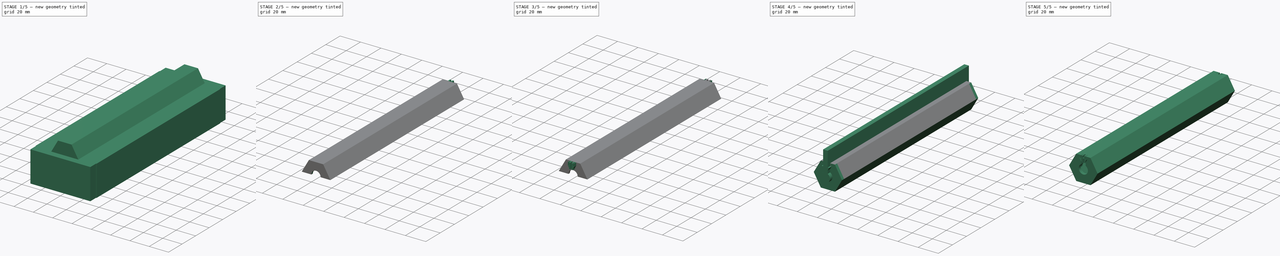
[diagram: build sequence overview — one tinted view per stage of 5, left to right]
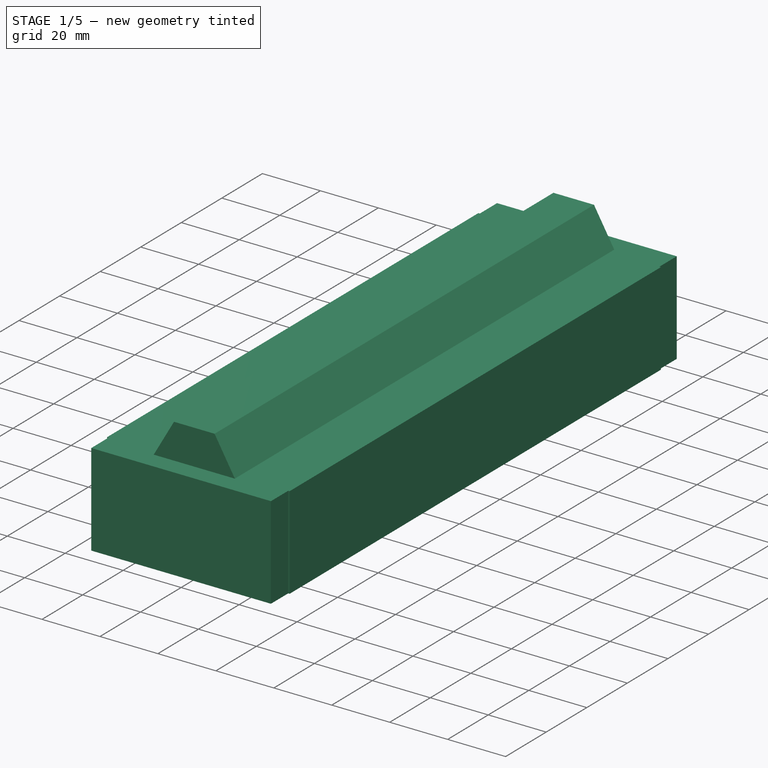
[diagram: stage 1 of 5 — iso view after this stage's code; geometry added in this stage tinted green]
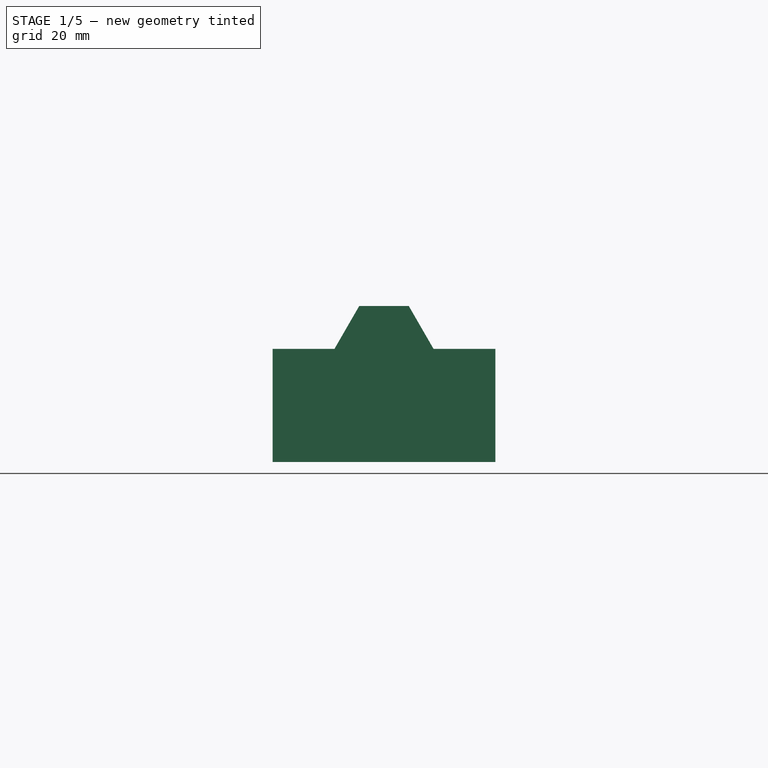
[diagram: stage 1 of 5 — front view after this stage's code; geometry added in this stage tinted green]
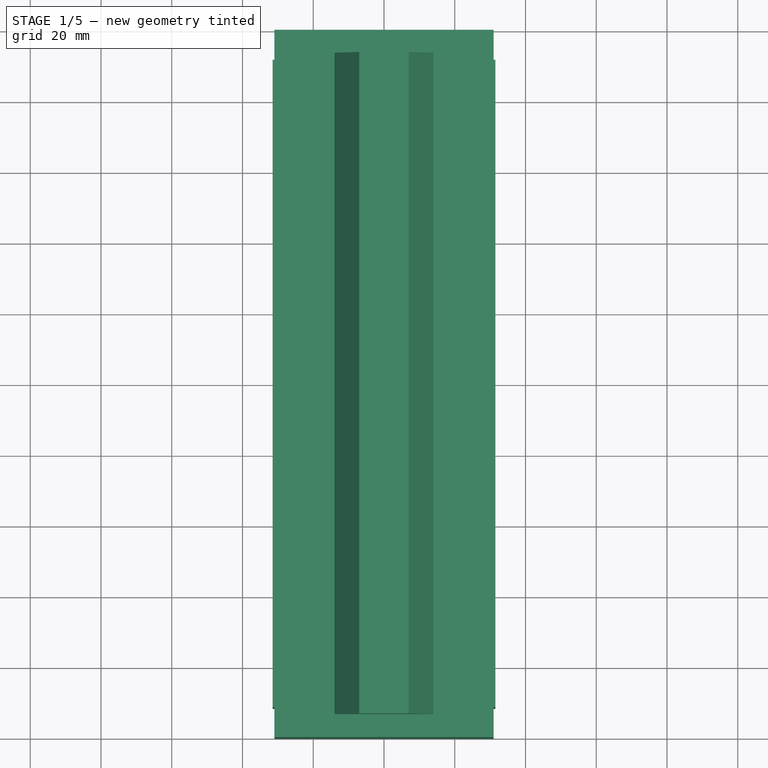
[diagram: stage 1 of 5 — top view after this stage's code; geometry added in this stage tinted green]
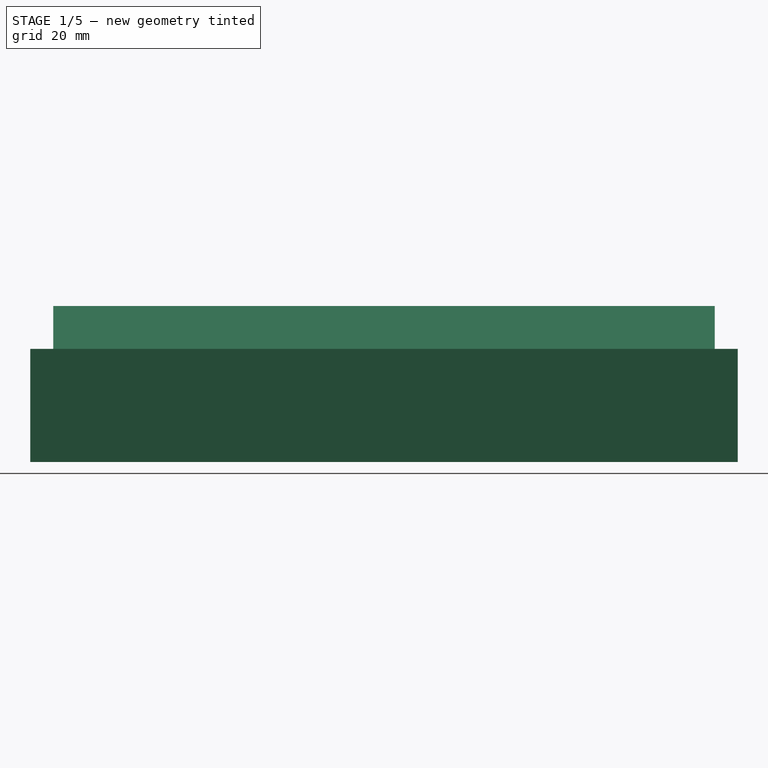
[diagram: stage 1 of 5 — right view after this stage's code; geometry added in this stage tinted green]
FCSTD DOCUMENT  (FreeCAD 0.16R4928 (Git))
Label: mote_node_enclosure_extended
License: CreativeCommons Attribution-ShareAlike
LicenseURL: http://creativecommons.org/licenses/by-sa/4.0/
objects: Sketcher::SketchObject×13, PartDesign::Pad×12, Part::Cut×4, PartDesign::Pocket×1
note: 43 computed .brp shape members not serialized (recipe doc carries the construction recipe); baked Part::Feature solids carry a one-line shape summary decoded from their .brp

FEATURE [Sketcher::SketchObject] Sketch003
  Placement = pos=(0,0,0) rot=(1,0,0;1.5708rad)
  sketch-geometry (9):
    g0: ArcOfCircle [constr] CenterX=0 CenterY=0 CenterZ=0 NormalX=0 NormalY=0 NormalZ=1 Radius=14.95 StartAngle=5.23792 EndAngle=10.47
    g1: LineSegment [constr] StartX=7.5 StartY=-12.9326 StartZ=0 EndX=-7.5 EndY=-12.9326 EndZ=0
    g2: LineSegment StartX=7 StartY=-12.1244 StartZ=0 EndX=14 EndY=0 EndZ=0
    g3: LineSegment StartX=14 StartY=0 StartZ=0 EndX=7 EndY=12.1244 EndZ=0
    g4: LineSegment StartX=7 StartY=12.1244 StartZ=0 EndX=-7 EndY=12.1244 EndZ=0
    g5: LineSegment StartX=-7 StartY=12.1244 StartZ=0 EndX=-14 EndY=0 EndZ=0
    g6: LineSegment StartX=-14 StartY=0 StartZ=0 EndX=-7 EndY=-12.1244 EndZ=0
    g7: LineSegment StartX=-7 StartY=-12.1244 StartZ=0 EndX=7 EndY=-12.1244 EndZ=0
    g8: Circle [constr] CenterX=0 CenterY=0 CenterZ=0 NormalX=0 NormalY=0 NormalZ=1 Radius=14
  constraints (22):
    c: Coincident(g0,g-1)
    c: Radius(g0) = 14.95
    c: Horizontal(g1)
    c: Coincident(g0,g1)
    c: Coincident(g0,g1)
    c: DistanceX(g1) = -15
    c: Coincident(g2,g3)
    c: Coincident(g3,g4)
    c: Coincident(g4,g5)
    c: Coincident(g5,g6)
    c: Coincident(g6,g7)
    c: Coincident(g7,g2)
    c: Equal(g2, g3-g7) x5
    c: PointOnObject(g2,g8)
    c: PointOnObject(g3,g8)
    c: PointOnObject(g4,g8)
    c: PointOnObject(g5,g8)
    c: PointOnObject(g6,g8)
    c: PointOnObject(g7,g8)
    c: Horizontal(g4)
    c: Coincident(g8,g-1)
    c: Radius(g8) = 14
FEATURE [Sketcher::SketchObject] Sketch004
  Placement = pos=(0,0,0) rot=(1,0,0;1.5708rad)
  sketch-geometry (13):
    g0: LineSegment StartX=-31.5 StartY=-4e-12 StartZ=0 EndX=-12 EndY=-4e-12 EndZ=0
    g1: LineSegment StartX=31.5 StartY=-4e-12 StartZ=0 EndX=31.5 EndY=-32 EndZ=0
    g2: LineSegment StartX=31.5 StartY=-32 StartZ=0 EndX=-31.5 EndY=-32 EndZ=0
    g3: LineSegment StartX=-31.5 StartY=-32 StartZ=0 EndX=-31.5 EndY=-4e-12 EndZ=0
    g4: LineSegment StartX=12 StartY=-4e-12 StartZ=0 EndX=31.5 EndY=-4e-12 EndZ=0
    g5: ArcOfCircle [constr] CenterX=0 CenterY=0 CenterZ=0 NormalX=0 NormalY=0 NormalZ=1 Radius=12 StartAngle=0 EndAngle=3.14159
    g6: LineSegment [constr] StartX=6 StartY=-10.3923 StartZ=0 EndX=12 EndY=0 EndZ=0
    g7: LineSegment StartX=12 StartY=0 StartZ=0 EndX=6 EndY=10.3923 EndZ=0
    g8: LineSegment StartX=6 StartY=10.3923 StartZ=0 EndX=-6 EndY=10.3923 EndZ=0
    g9: LineSegment StartX=-6 StartY=10.3923 StartZ=0 EndX=-12 EndY=0 EndZ=0
    g10: LineSegment [constr] StartX=-12 StartY=0 StartZ=0 EndX=-6 EndY=-10.3923 EndZ=0
    g11: LineSegment [constr] StartX=-6 StartY=-10.3923 StartZ=0 EndX=6 EndY=-10.3923 EndZ=0
    g12: Circle [constr] CenterX=0 CenterY=0 CenterZ=0 NormalX=0 NormalY=0 NormalZ=1 Radius=12
  constraints (34):
    c: Coincident(g4,g1)
    c: Coincident(g1,g2)
    c: Coincident(g2,g3)
    c: Coincident(g3,g0)
    c: Horizontal(g0)
    c: Horizontal(g2)
    c: Vertical(g1)
    c: Vertical(g3)
    c: Symmetric(g0,g4,g-2)
    c: DistanceX(g2) = -63
    c: DistanceY(g1) = -32
    c: Horizontal(g4)
    c: Perpendicular(g0,g5) = 4.71239
    c: Perpendicular(g5,g4) = 4.71239
    c: PointOnObject(g5,g-2)
    c: Radius(g5) = 12
    c: Equal(g0,g4)
    c: Coincident(g5,g-1)
    c: Coincident(g6,g7)
    c: Coincident(g7,g8)
    c: Coincident(g8,g9)
    c: Coincident(g9,g10)
    c: Coincident(g10,g11)
    c: Coincident(g11,g6)
    c: Equal(g6, g7-g11) x5
    c: PointOnObject(g6,g12)
    c: PointOnObject(g7,g12)
    c: PointOnObject(g8,g12)
    c: PointOnObject(g9,g12)
    c: PointOnObject(g10,g12)
    c: PointOnObject(g11,g12)
    c: Horizontal(g8)
    c: Coincident(g12,g-1)
    c: Coincident(g6,g4)
FEATURE [PartDesign::Pad] Pad004
  Length = 183
  Length2 = 100
  Midplane = true
  Placement = pos=(0,0,0) rot=(1,0,0;1.5708rad)
  Sketch = -> Sketch004
  Type = 0
FEATURE [PartDesign::Pad] Pad003
  Length = 187
  Length2 = 100
  Midplane = true
  Placement = pos=(0,0,0) rot=(1,0,0;1.5708rad)
  Sketch = -> Sketch003
  Type = 0
FEATURE [Sketcher::SketchObject] Sketch005
  Placement = pos=(0,0,0) rot=(1,0,0;1.5708rad)
  sketch-geometry (4):
    g0: LineSegment StartX=-31 StartY=0 StartZ=0 EndX=31 EndY=0 EndZ=0
    g1: LineSegment StartX=31 StartY=0 StartZ=0 EndX=31 EndY=-32 EndZ=0
    g2: LineSegment StartX=31 StartY=-32 StartZ=0 EndX=-31 EndY=-32 EndZ=0
    g3: LineSegment StartX=-31 StartY=-32 StartZ=0 EndX=-31 EndY=0 EndZ=0
  constraints (11):
    c: Coincident(g0,g1)
    c: Coincident(g1,g2)
    c: Coincident(g2,g3)
    c: Coincident(g3,g0)
    c: Horizontal(g0)
    c: Horizontal(g2)
    c: Vertical(g1)
    c: Vertical(g3)
    c: Symmetric(g0,g0,g-1)
    c: DistanceX(g0) = 62
    c: DistanceY(g1) = -32
FEATURE [PartDesign::Pad] Pad005
  Length = 200
  Length2 = 100
  Midplane = true
  Placement = pos=(0,0,0) rot=(1,0,0;1.5708rad)
  Sketch = -> Sketch005
  Type = 0
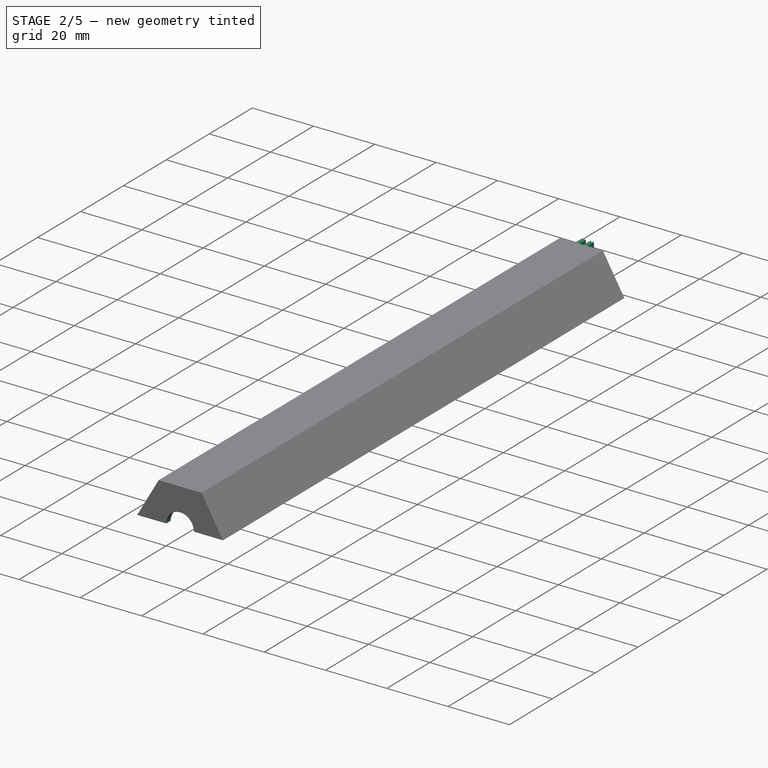
[diagram: stage 2 of 5 — iso view after this stage's code; geometry added in this stage tinted green]
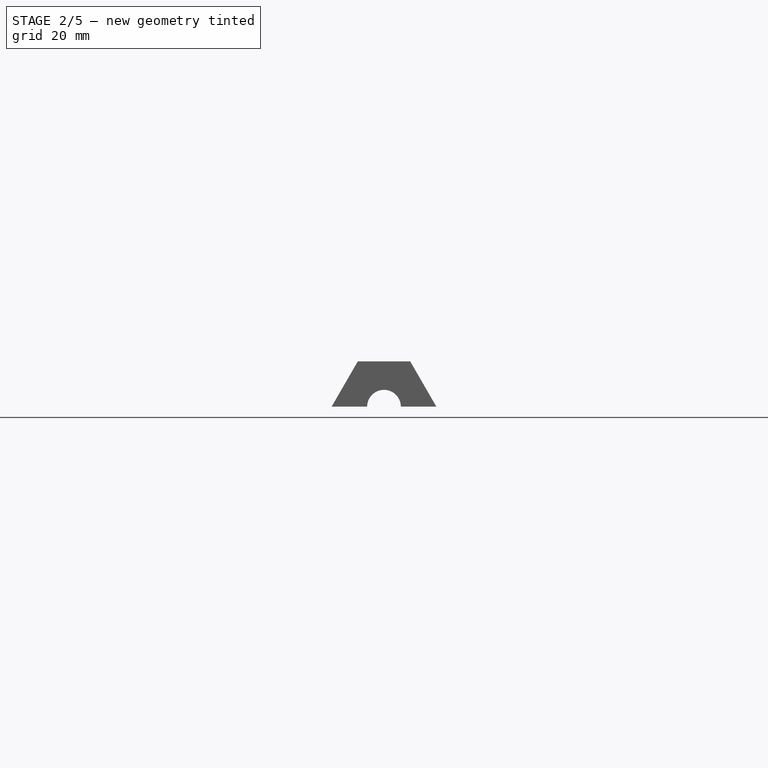
[diagram: stage 2 of 5 — front view after this stage's code; geometry added in this stage tinted green]
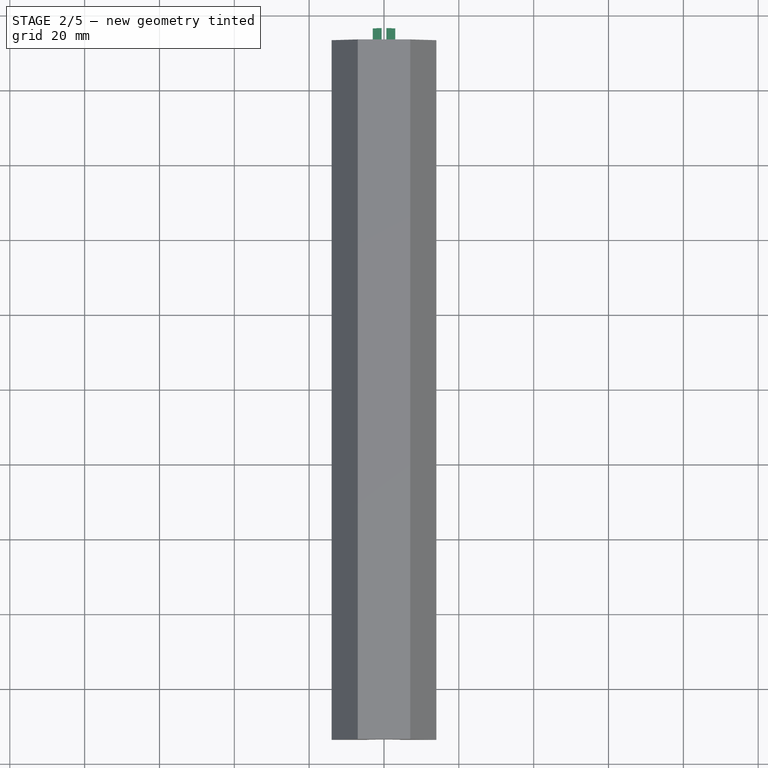
[diagram: stage 2 of 5 — top view after this stage's code; geometry added in this stage tinted green]
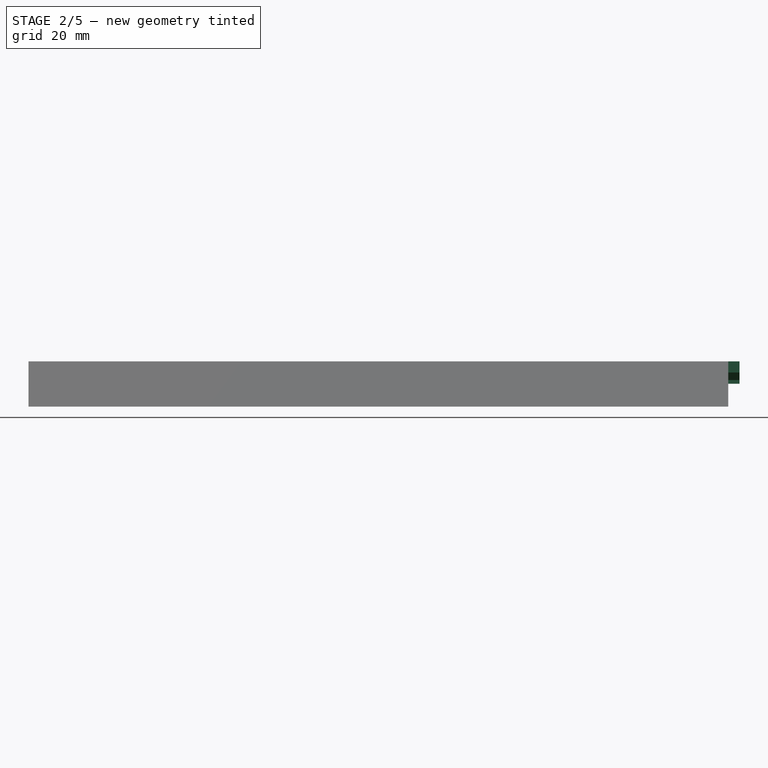
[diagram: stage 2 of 5 — right view after this stage's code; geometry added in this stage tinted green]
FEATURE [Part::Cut] Cut002
  Base = -> Pad003
  Tool = -> Pad004
FEATURE [Part::Cut] Cut003
  Base = -> Cut002
  Tool = -> Pad005
FEATURE [Sketcher::SketchObject] Sketch006
  Placement = pos=(0,-93.5,0) rot=(1,0,0;1.5708rad)
  Support = -> Cut003 [Face4]
  sketch-geometry (1):
    g0: Circle CenterX=0 CenterY=0 CenterZ=0 NormalX=0 NormalY=0 NormalZ=1 Radius=4.5
  constraints (2):
    c: Coincident(g0,g-1)
    c: Radius(g0) = 4.5
FEATURE [PartDesign::Pocket] Pocket
  Length = 5
  Midplane = true
  Sketch = -> Sketch006
  Type = 1
FEATURE [Sketcher::SketchObject] Sketch008
  ExternalGeometry = -> [Pocket]
  Placement = pos=(0,93.5,0) rot=(0,0.707107,0.707107;3.14159rad)
  Support = -> Pocket [Face3]
  sketch-geometry (14):
    g0: LineSegment StartX=-2 StartY=12.1244 StartZ=0 EndX=-2 EndY=9.12436 EndZ=0
    g1: LineSegment StartX=-2 StartY=9.12436 StartZ=0 EndX=-3 EndY=9.12436 EndZ=0
    g2: LineSegment StartX=-3 StartY=9.12436 StartZ=0 EndX=-1.85 EndY=7.1325 EndZ=0
    g3: LineSegment StartX=-1.85 StartY=7.1325 StartZ=0 EndX=-1.85 EndY=6.12436 EndZ=0
    g4: LineSegment StartX=-1.85 StartY=6.12436 StartZ=0 EndX=-0.65 EndY=6.12436 EndZ=0
    g5: LineSegment StartX=-0.65 StartY=6.12436 StartZ=0 EndX=-0.65 EndY=12.1244 EndZ=0
    g6: LineSegment StartX=-0.65 StartY=12.1244 StartZ=0 EndX=-2 EndY=12.1244 EndZ=0
    g7: LineSegment StartX=0.65 StartY=12.1244 StartZ=0 EndX=0.65 EndY=6.12436 EndZ=0
    g8: LineSegment StartX=0.65 StartY=6.12436 StartZ=0 EndX=1.85 EndY=6.12436 EndZ=0
    g9: LineSegment StartX=1.85 StartY=6.12436 StartZ=0 EndX=1.85 EndY=7.1325 EndZ=0
    g10: LineSegment StartX=1.85 StartY=7.1325 StartZ=0 EndX=3 EndY=9.12436 EndZ=0
    g11: LineSegment StartX=3 StartY=9.12436 StartZ=0 EndX=2 EndY=9.12436 EndZ=0
    g12: LineSegment StartX=2 StartY=9.12436 StartZ=0 EndX=2 EndY=12.1244 EndZ=0
    g13: LineSegment StartX=2 StartY=12.1244 StartZ=0 EndX=0.65 EndY=12.1244 EndZ=0
  constraints (42):
    c: Coincident(g0,g1)
    c: Coincident(g0,g6)
    c: Coincident(g1,g2)
    c: Coincident(g3,g2)
    c: Coincident(g4,g3)
    c: Coincident(g4,g5)
    c: Coincident(g5,g6)
    c: Coincident(g7,g8)
    c: Coincident(g13,g7)
    c: Coincident(g8,g9)
    c: Coincident(g9,g10)
    c: Coincident(g10,g11)
    c: Coincident(g11,g12)
    c: Coincident(g12,g13)
    c: Vertical(g5)
    c: Vertical(g7)
    c: Vertical(g12)
    c: Vertical(g0)
    c: Vertical(g3)
    c: Vertical(g9)
    c: Horizontal(g13)
    c: Horizontal(g6)
    c: Horizontal(g1)
    c: Horizontal(g11)
    c: Horizontal(g8)
    c: Horizontal(g4)
    c: PointOnObject(g5,g-3)
    c: PointOnObject(g7,g-3)
    c: Equal(g8,g4)
    c: Equal(g1,g11)
    c: Equal(g7,g5)
    c: Symmetric(g7,g5,g-2)
    c: DistanceX(g12,g-3) = 5
    c: DistanceX(g8) = 1.2
    c: Angle(g11,g10) = 1.0472
    c: Angle(g2,g1) = 1.0472
    c: Equal(g3,g9)
    c: Equal(g12,g0)
    c: DistanceY(g7) = -6
    c: DistanceX(g11) = -1
    c: DistanceY(g0) = -3
    c: Distance(g10) = 2.3
FEATURE [PartDesign::Pad] Pad006
  Length = 3
  Length2 = 100
  Sketch = -> Sketch008
  Type = 0
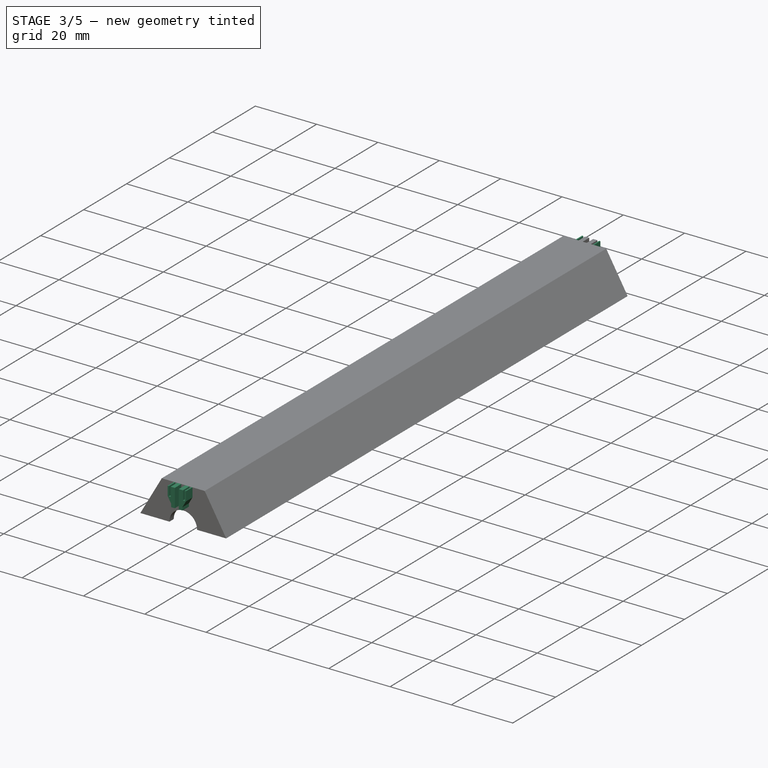
[diagram: stage 3 of 5 — iso view after this stage's code; geometry added in this stage tinted green]
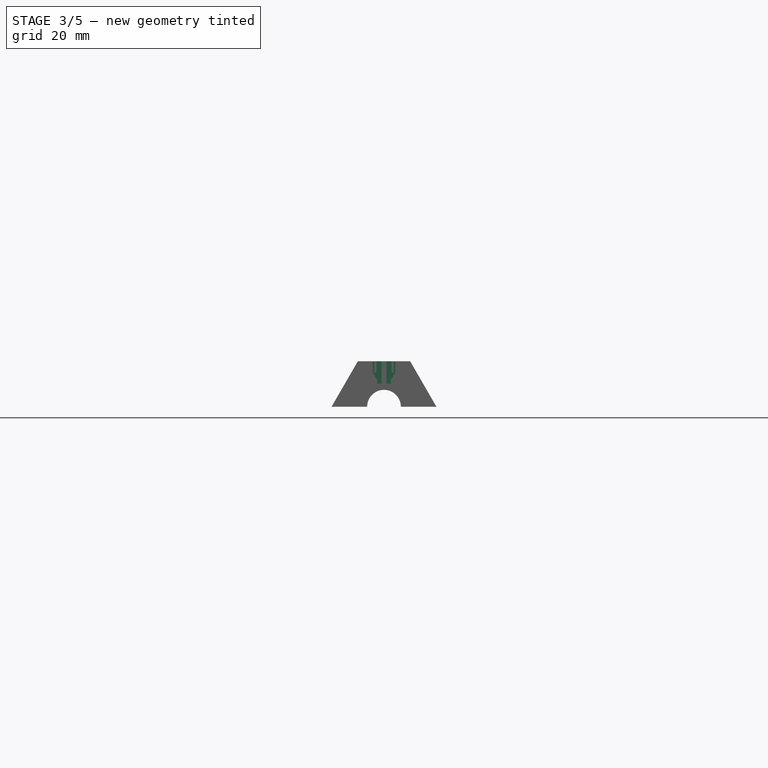
[diagram: stage 3 of 5 — front view after this stage's code; geometry added in this stage tinted green]
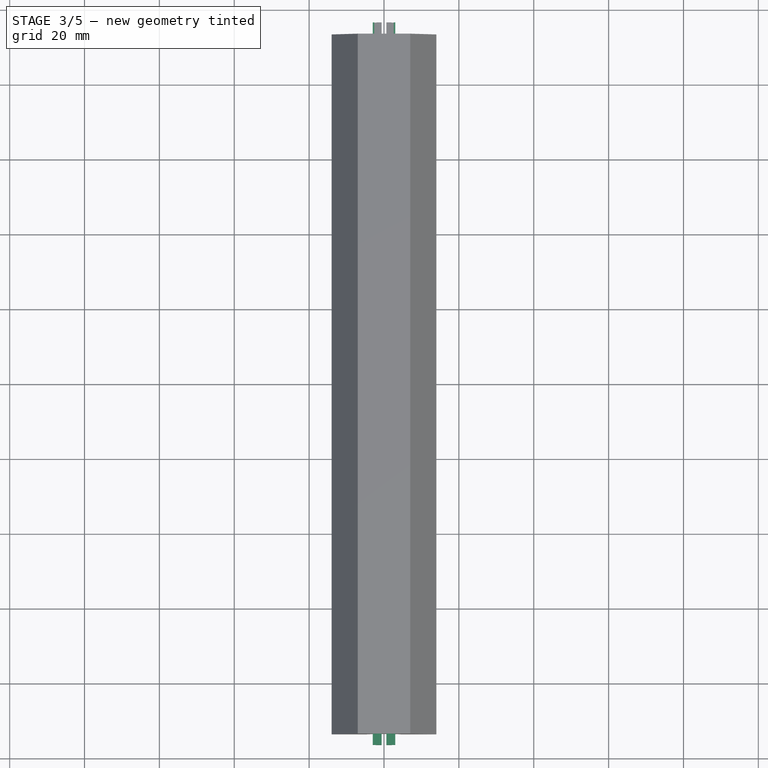
[diagram: stage 3 of 5 — top view after this stage's code; geometry added in this stage tinted green]
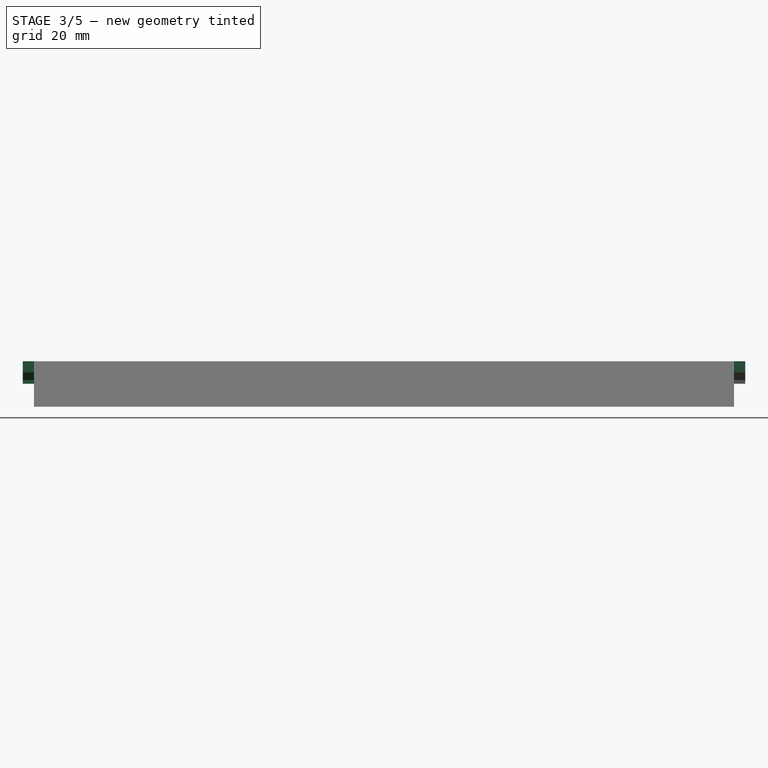
[diagram: stage 3 of 5 — right view after this stage's code; geometry added in this stage tinted green]
FEATURE [Sketcher::SketchObject] Sketch009
  ExternalGeometry = -> [Pad006]
  Placement = pos=(0,-93.5,0) rot=(1,0,0;1.5708rad)
  Support = -> Pad006 [Face4]
  sketch-geometry (14):
    g0: LineSegment StartX=0.65 StartY=12.1244 StartZ=0 EndX=0.65 EndY=6.12436 EndZ=0
    g1: LineSegment StartX=0.65 StartY=6.12436 StartZ=0 EndX=1.85 EndY=6.12436 EndZ=0
    g2: LineSegment StartX=1.85 StartY=6.12436 StartZ=0 EndX=1.85 EndY=7.1325 EndZ=0
    g3: LineSegment StartX=1.85 StartY=7.1325 StartZ=0 EndX=3 EndY=9.12436 EndZ=0
    g4: LineSegment StartX=3 StartY=9.12436 StartZ=0 EndX=2 EndY=9.12436 EndZ=0
    g5: LineSegment StartX=2 StartY=9.12436 StartZ=0 EndX=2 EndY=12.1244 EndZ=0
    g6: LineSegment StartX=2 StartY=12.1244 StartZ=0 EndX=0.65 EndY=12.1244 EndZ=0
    g7: LineSegment StartX=-2 StartY=12.1244 StartZ=0 EndX=-0.65 EndY=12.1244 EndZ=0
    g8: LineSegment StartX=-0.65 StartY=12.1244 StartZ=0 EndX=-0.65 EndY=6.12436 EndZ=0
    g9: LineSegment StartX=-0.65 StartY=6.12436 StartZ=0 EndX=-1.85 EndY=6.12436 EndZ=0
    g10: LineSegment StartX=-1.85 StartY=6.12436 StartZ=0 EndX=-1.85 EndY=7.1325 EndZ=0
    g11: LineSegment StartX=-1.85 StartY=7.1325 StartZ=0 EndX=-3 EndY=9.12436 EndZ=0
    g12: LineSegment StartX=-3 StartY=9.12436 StartZ=0 EndX=-2 EndY=9.12436 EndZ=0
    g13: LineSegment StartX=-2 StartY=9.12436 StartZ=0 EndX=-2 EndY=12.1244 EndZ=0
  constraints (42):
    c: Vertical(g0)
    c: Coincident(g0,g1)
    c: Horizontal(g1)
    c: Coincident(g1,g2)
    c: Coincident(g2,g3)
    c: Coincident(g3,g4)
    c: Coincident(g4,g5)
    c: Vertical(g5)
    c: Coincident(g5,g6)
    c: Coincident(g6,g0)
    c: Horizontal(g6)
    c: Horizontal(g7)
    c: Coincident(g7,g8)
    c: Vertical(g8)
    c: Coincident(g8,g9)
    c: Coincident(g9,g10)
    c: Coincident(g10,g11)
    c: Coincident(g11,g12)
    c: Horizontal(g12)
    c: Coincident(g12,g13)
    c: Coincident(g13,g7)
    c: Vertical(g13)
    c: Vertical(g10)
    c: Vertical(g2)
    c: Horizontal(g4)
    c: Horizontal(g9)
    c: PointOnObject(g0,g-3)
    c: PointOnObject(g7,g-3)
    c: Equal(g12,g4)
    c: Equal(g1,g9)
    c: Equal(g0,g8)
    c: Equal(g13,g5)
    c: Equal(g2,g10)
    c: DistanceX(g5,g-3) = 5
    c: DistanceY(g13) = 3
    c: DistanceX(g4) = -1
    c: DistanceX(g1) = 1.2
    c: Angle(g4,g3) = 1.0472
    c: Angle(g11,g12) = 1.0472
    c: Symmetric(g0,g7,g-2)
    c: DistanceY(g0) = -6
    c: Distance(g3) = 2.3
FEATURE [PartDesign::Pad] Pad007  label="tapa"
  Length = 3
  Length2 = 100
  Sketch = -> Sketch009
  Type = 0
FEATURE [Sketcher::SketchObject] Sketch012
  ExternalGeometry = -> [Pad007]
  Placement = pos=(0,0,9.12436) rot=(0,0,1;0rad)
  Support = -> Pad007 [Face36]
  sketch-geometry (8):
    g0: LineSegment StartX=-3 StartY=-96.5 StartZ=0 EndX=-2.6 EndY=-96.5 EndZ=0
    g1: LineSegment StartX=-2.6 StartY=-96.5 StartZ=0 EndX=-2.6 EndY=-93.5 EndZ=0
    g2: LineSegment StartX=-2.6 StartY=-93.5 StartZ=0 EndX=-3 EndY=-93.5 EndZ=0
    g3: LineSegment StartX=-3 StartY=-93.5 StartZ=0 EndX=-3 EndY=-96.5 EndZ=0
    g4: LineSegment StartX=2.6 StartY=-93.5 StartZ=0 EndX=3 EndY=-93.5 EndZ=0
    g5: LineSegment StartX=3 StartY=-93.5 StartZ=0 EndX=3 EndY=-96.5 EndZ=0
    g6: LineSegment StartX=3 StartY=-96.5 StartZ=0 EndX=2.6 EndY=-96.5 EndZ=0
    g7: LineSegment StartX=2.6 StartY=-96.5 StartZ=0 EndX=2.6 EndY=-93.5 EndZ=0
  constraints (22):
    c: Coincident(g0,g1)
    c: Coincident(g1,g2)
    c: Coincident(g2,g3)
    c: Coincident(g3,g0)
    c: Horizontal(g0)
    c: Horizontal(g2)
    c: Vertical(g1)
    c: Vertical(g3)
    c: Coincident(g0,g-3)
    c: Coincident(g2,g-3)
    c: DistanceX(g0) = 0.4
    c: Coincident(g4,g5)
    c: Coincident(g5,g6)
    c: Coincident(g6,g7)
    c: Coincident(g7,g4)
    c: Horizontal(g4)
    c: Horizontal(g6)
    c: Vertical(g5)
    c: Vertical(g7)
    c: Coincident(g5,g-4)
    c: Coincident(g-4,g4)
    c: Equal(g0,g6)
FEATURE [PartDesign::Pad] Pad010
  Length = 3
  Length2 = 100
  Sketch = -> Sketch012
  Type = 0
FEATURE [Sketcher::SketchObject] Sketch013
  ExternalGeometry = -> [Pad010]
  Placement = pos=(0,0,9.12436) rot=(0,0,1;0rad)
  Support = -> Pad010 [Face11]
  sketch-geometry (8):
    g0: LineSegment StartX=2.6 StartY=96.5 StartZ=0 EndX=3 EndY=96.5 EndZ=0
    g1: LineSegment StartX=3 StartY=96.5 StartZ=0 EndX=3 EndY=93.5 EndZ=0
    g2: LineSegment StartX=3 StartY=93.5 StartZ=0 EndX=2.6 EndY=93.5 EndZ=0
    g3: LineSegment StartX=2.6 StartY=93.5 StartZ=0 EndX=2.6 EndY=96.5 EndZ=0
    g4: LineSegment StartX=-3 StartY=96.5 StartZ=0 EndX=-2.6 EndY=96.5 EndZ=0
    g5: LineSegment StartX=-2.6 StartY=96.5 StartZ=0 EndX=-2.6 EndY=93.5 EndZ=0
    g6: LineSegment StartX=-2.6 StartY=93.5 StartZ=0 EndX=-3 EndY=93.5 EndZ=0
    g7: LineSegment StartX=-3 StartY=93.5 StartZ=0 EndX=-3 EndY=96.5 EndZ=0
  constraints (22):
    c: Coincident(g0,g1)
    c: Coincident(g1,g2)
    c: Coincident(g2,g3)
    c: Coincident(g3,g0)
    c: Horizontal(g0)
    c: Horizontal(g2)
    c: Vertical(g1)
    c: Vertical(g3)
    c: Coincident(g1,g-4)
    c: Coincident(g0,g-4)
    c: Coincident(g4,g5)
    c: Coincident(g5,g6)
    c: Coincident(g6,g7)
    c: Coincident(g7,g4)
    c: Horizontal(g4)
    c: Horizontal(g6)
    c: Vertical(g5)
    c: Vertical(g7)
    c: Coincident(g6,g-3)
    c: Coincident(g4,g-3)
    c: Equal(g4,g0)
    c: DistanceX(g4) = 0.4
FEATURE [PartDesign::Pad] Pad011  label="tapa2"
  Length = 3
  Length2 = 100
  Sketch = -> Sketch013
  Type = 0
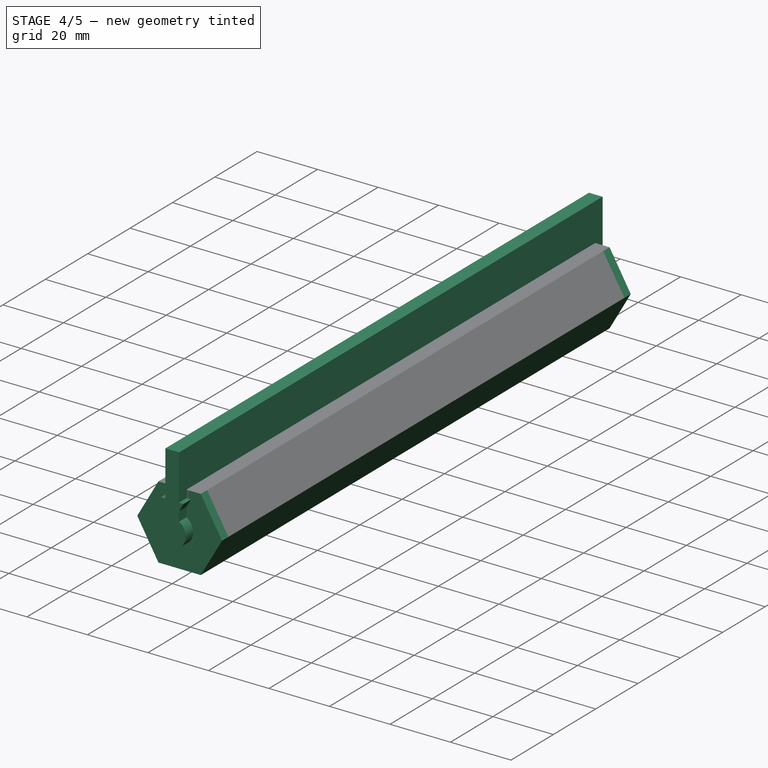
[diagram: stage 4 of 5 — iso view after this stage's code; geometry added in this stage tinted green]
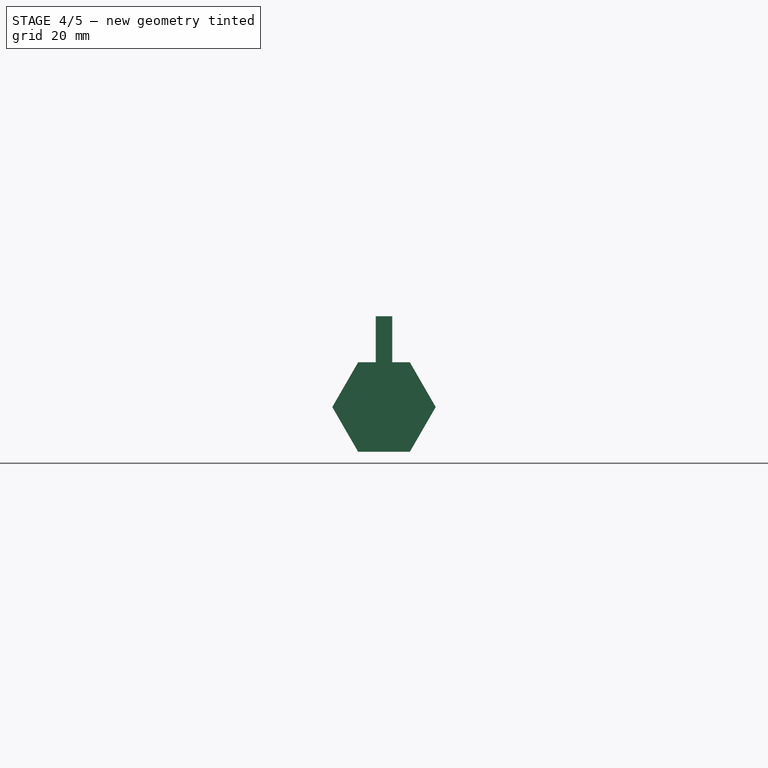
[diagram: stage 4 of 5 — front view after this stage's code; geometry added in this stage tinted green]
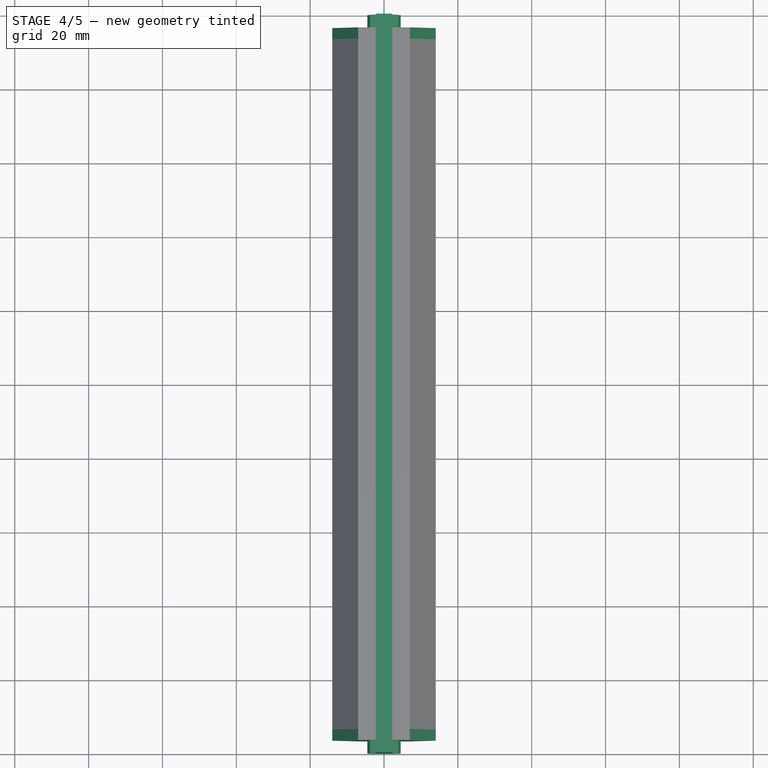
[diagram: stage 4 of 5 — top view after this stage's code; geometry added in this stage tinted green]
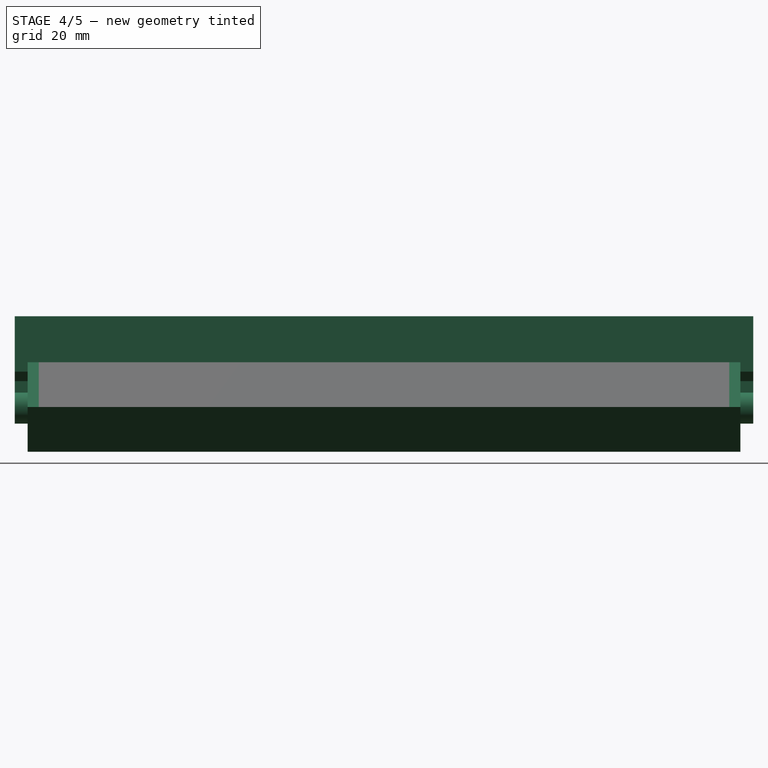
[diagram: stage 4 of 5 — right view after this stage's code; geometry added in this stage tinted green]
FEATURE [Sketcher::SketchObject] Sketch
  Placement = pos=(0,0,0) rot=(1,0,0;1.5708rad)
  sketch-geometry (7):
    g0: LineSegment StartX=7 StartY=-12.1244 StartZ=0 EndX=14 EndY=0 EndZ=0
    g1: LineSegment StartX=14 StartY=0 StartZ=0 EndX=7 EndY=12.1244 EndZ=0
    g2: LineSegment StartX=7 StartY=12.1244 StartZ=0 EndX=-7 EndY=12.1244 EndZ=0
    g3: LineSegment StartX=-7 StartY=12.1244 StartZ=0 EndX=-14 EndY=0 EndZ=0
    g4: LineSegment StartX=-14 StartY=0 StartZ=0 EndX=-7 EndY=-12.1244 EndZ=0
    g5: LineSegment StartX=-7 StartY=-12.1244 StartZ=0 EndX=7 EndY=-12.1244 EndZ=0
    g6: Circle [constr] CenterX=0 CenterY=0 CenterZ=0 NormalX=0 NormalY=0 NormalZ=1 Radius=14
  constraints (17):
    c: Coincident(g0,g1)
    c: Coincident(g1,g2)
    c: Coincident(g2,g3)
    c: Coincident(g3,g4)
    c: Coincident(g4,g5)
    c: Coincident(g5,g0)
    c: Equal(g0, g1-g5) x5
    c: PointOnObject(g0,g6)
    c: PointOnObject(g1,g6)
    c: PointOnObject(g2,g6)
    c: PointOnObject(g3,g6)
    c: PointOnObject(g4,g6)
    c: PointOnObject(g5,g6)
    c: Coincident(g3,g-1)
    c: Horizontal(g2)
    c: Radius(g6) = 14
    c: Coincident(g6,g-1)
FEATURE [PartDesign::Pad] Pad
  Length = 193
  Length2 = 100
  Midplane = true
  Placement = pos=(0,0,0) rot=(1,0,0;1.5708rad)
  Sketch = -> Sketch
  Type = 0
FEATURE [Sketcher::SketchObject] Sketch001
  Placement = pos=(0,0,0) rot=(1,0,0;1.5708rad)
  sketch-geometry (12):
    g0: LineSegment StartX=-19.8481 StartY=20 StartZ=0 EndX=19.8481 EndY=20 EndZ=0
    g1: LineSegment StartX=19.8481 StartY=20 StartZ=0 EndX=19.8481 EndY=0 EndZ=0
    g2: LineSegment StartX=19.8481 StartY=0 StartZ=0 EndX=13 EndY=0 EndZ=0
    g3: LineSegment StartX=-19.8481 StartY=0 StartZ=0 EndX=-19.8481 EndY=20 EndZ=0
    g4: LineSegment StartX=-13 StartY=0 StartZ=0 EndX=-19.8481 EndY=0 EndZ=0
    g5: LineSegment [constr] StartX=13 StartY=0 StartZ=0 EndX=6.5 EndY=11.2583 EndZ=0
    g6: LineSegment [constr] StartX=6.5 StartY=11.2583 StartZ=0 EndX=-6.5 EndY=11.2583 EndZ=0
    g7: LineSegment [constr] StartX=-6.5 StartY=11.2583 StartZ=0 EndX=-13 EndY=0 EndZ=0
    g8: LineSegment StartX=-13 StartY=0 StartZ=0 EndX=-6.5 EndY=-11.2583 EndZ=0
    g9: LineSegment StartX=-6.5 StartY=-11.2583 StartZ=0 EndX=6.5 EndY=-11.2583 EndZ=0
    g10: LineSegment StartX=6.5 StartY=-11.2583 StartZ=0 EndX=13 EndY=0 EndZ=0
    g11: Circle [constr] CenterX=0 CenterY=0 CenterZ=0 NormalX=0 NormalY=0 NormalZ=1 Radius=13
  constraints (30):
    c: Coincident(g0,g1)
    c: Coincident(g1,g2)
    c: Coincident(g4,g3)
    c: Coincident(g3,g0)
    c: Horizontal(g0)
    c: Horizontal(g2)
    c: Vertical(g1)
    c: Vertical(g3)
    c: Symmetric(g1,g4,g-2)
    c: Tangent(g2,g4)
    c: Equal(g2,g4)
    c: DistanceY(g1) = -20
    c: Coincident(g5,g6)
    c: Coincident(g6,g7)
    c: Coincident(g7,g8)
    c: Coincident(g8,g9)
    c: Coincident(g9,g10)
    c: Coincident(g10,g5)
    c: Equal(g5, g6-g10) x5
    c: PointOnObject(g5,g11)
    c: PointOnObject(g6,g11)
    c: PointOnObject(g7,g11)
    c: PointOnObject(g8,g11)
    c: PointOnObject(g9,g11)
    c: PointOnObject(g10,g11)
    c: Horizontal(g9)
    c: Coincident(g5,g2)
    c: Coincident(g11,g-1)
    c: Radius(g11) = 13
    c: DistanceX(g0) = 39.6962
FEATURE [PartDesign::Pad] Pad001
  Length = 187
  Length2 = 100
  Midplane = true
  Placement = pos=(0,0,0) rot=(1,0,0;1.5708rad)
  Sketch = -> Sketch001
  Type = 0
FEATURE [Part::Cut] Cut
  Base = -> Pad
  Tool = -> Pad001
FEATURE [Sketcher::SketchObject] Sketch002
  Placement = pos=(0,0,0) rot=(1,0,0;1.5708rad)
  sketch-geometry (10):
    g0: LineSegment StartX=2.25 StartY=7 StartZ=0 EndX=2.25 EndY=3.89711 EndZ=0
    g1: LineSegment StartX=-2.25 StartY=3.89711 StartZ=0 EndX=-2.25 EndY=7 EndZ=0
    g2: ArcOfCircle CenterX=0 CenterY=0 CenterZ=0 NormalX=0 NormalY=0 NormalZ=1 Radius=4.5 StartAngle=2.0944 EndAngle=7.33038
    g3: LineSegment StartX=2.25 StartY=9.59808 StartZ=0 EndX=3.75 EndY=9.59808 EndZ=0
    g4: LineSegment StartX=3.75 StartY=9.59808 StartZ=0 EndX=2.25 EndY=7 EndZ=0
    g5: LineSegment StartX=-2.25 StartY=9.59808 StartZ=0 EndX=-3.75 EndY=9.59808 EndZ=0
    g6: LineSegment StartX=-3.75 StartY=9.59808 StartZ=0 EndX=-2.25 EndY=7 EndZ=0
    g7: LineSegment StartX=-2.25 StartY=9.59808 StartZ=0 EndX=-2.25 EndY=24.5981 EndZ=0
    g8: LineSegment StartX=-2.25 StartY=24.5981 StartZ=0 EndX=2.25 EndY=24.5981 EndZ=0
    g9: LineSegment StartX=2.25 StartY=24.5981 StartZ=0 EndX=2.25 EndY=9.59808 EndZ=0
  constraints (31):
    c: Vertical(g0)
    c: Vertical(g1)
    c: Coincident(g2,g1)
    c: Coincident(g2,g0)
    c: Equal(g1,g0)
    c: Radius(g2) = 4.5
    c: Coincident(g2,g-1)
    c: PointOnObject(g3,g0)
    c: Horizontal(g3)
    c: Coincident(g3,g4)
    c: PointOnObject(g4,g0)
    c: PointOnObject(g5,g1)
    c: Horizontal(g5)
    c: Coincident(g5,g6)
    c: PointOnObject(g6,g1)
    c: Equal(g6,g4)
    c: Equal(g5,g3)
    c: Symmetric(g5,g3,g-2)
    c: Angle(g3,g4) = 1.0472
    c: DistanceY(g4) = 7
    c: DistanceX(g3) = 1.5
    c: DistanceX(g0,g1) = -4.5
    c: Coincident(g0,g4)
    c: Coincident(g5,g7)
    c: Vertical(g7)
    c: Coincident(g7,g8)
    c: Horizontal(g8)
    c: Coincident(g8,g9)
    c: Coincident(g9,g3)
    c: Vertical(g9)
    c: DistanceY(g9) = -15
FEATURE [PartDesign::Pad] Pad002
  Length = 200
  Length2 = 100
  Midplane = true
  Placement = pos=(0,0,0) rot=(1,0,0;1.5708rad)
  Sketch = -> Sketch002
  Type = 0
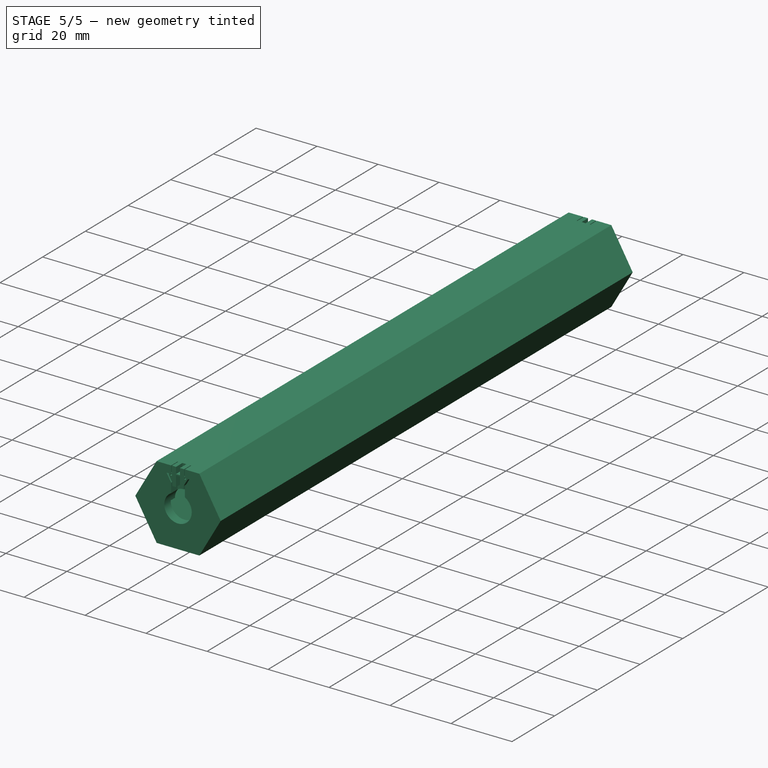
[diagram: stage 5 of 5 — iso view after this stage's code; geometry added in this stage tinted green]
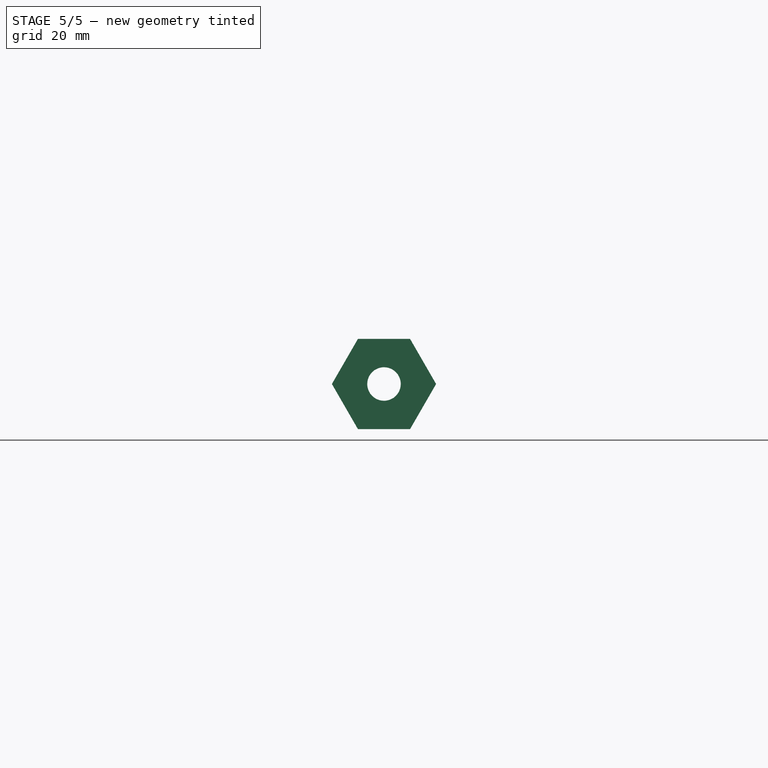
[diagram: stage 5 of 5 — front view after this stage's code; geometry added in this stage tinted green]
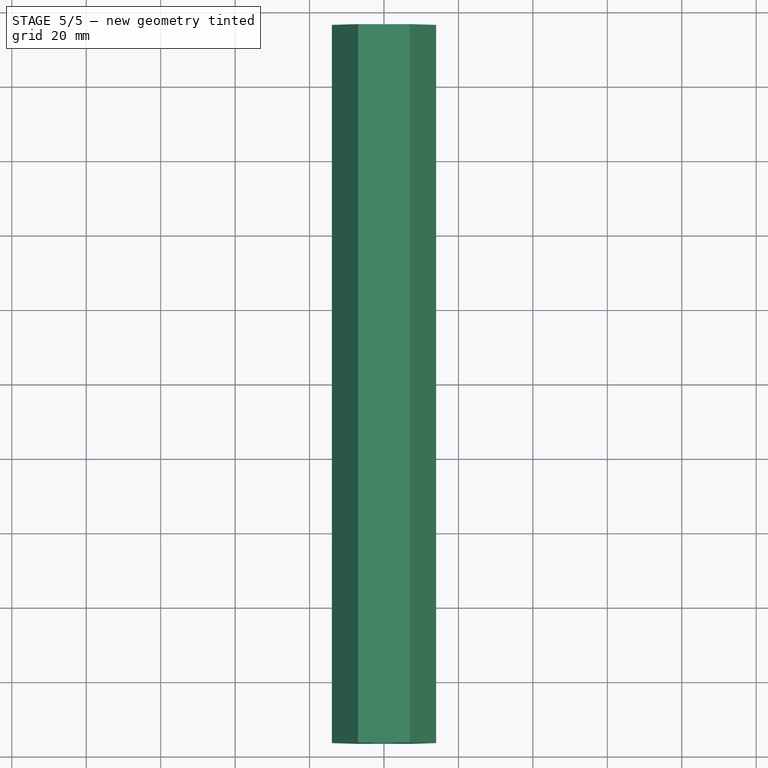
[diagram: stage 5 of 5 — top view after this stage's code; geometry added in this stage tinted green]
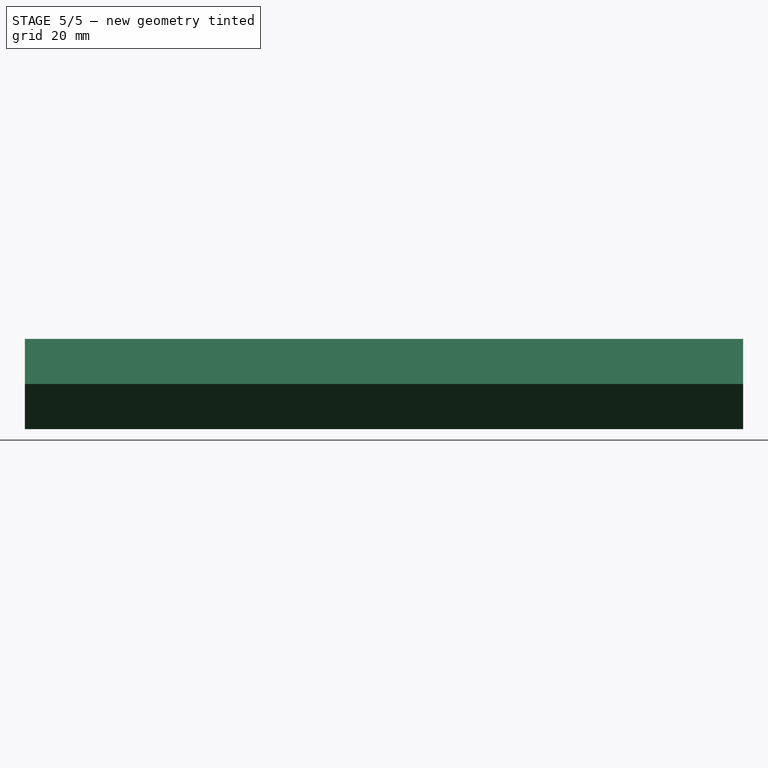
[diagram: stage 5 of 5 — right view after this stage's code; geometry added in this stage tinted green]
FEATURE [Part::Cut] Cut001
  Base = -> Cut
  Tool = -> Pad002
FEATURE [Sketcher::SketchObject] Sketch010
  ExternalGeometry = -> [Cut001]
  Placement = pos=(2.25,0,0) rot=(0.57735,-0.57735,-0.57735;2.0944rad)
  Support = -> Cut001 [Face22]
  sketch-geometry (4):
    g0: LineSegment StartX=93.5 StartY=9.99808 StartZ=0 EndX=96.5 EndY=9.99808 EndZ=0
    g1: LineSegment StartX=96.5 StartY=9.99808 StartZ=0 EndX=96.5 EndY=9.59808 EndZ=0
    g2: LineSegment StartX=96.5 StartY=9.59808 StartZ=0 EndX=93.5 EndY=9.59808 EndZ=0
    g3: LineSegment StartX=93.5 StartY=9.59808 StartZ=0 EndX=93.5 EndY=9.99808 EndZ=0
  constraints (11):
    c: Coincident(g0,g1)
    c: Coincident(g1,g2)
    c: Coincident(g2,g3)
    c: Coincident(g3,g0)
    c: Horizontal(g0)
    c: Horizontal(g2)
    c: Vertical(g1)
    c: Vertical(g3)
    c: Coincident(g1,g-3)
    c: Coincident(g2,g-3)
    c: DistanceY(g1) = -0.4
FEATURE [PartDesign::Pad] Pad008
  Length = 5
  Length2 = 100
  Sketch = -> Sketch010
  Type = 0
FEATURE [Sketcher::SketchObject] Sketch011
  ExternalGeometry = -> [Pad008]
  Placement = pos=(2.25,0,0) rot=(0.57735,-0.57735,-0.57735;2.0944rad)
  Support = -> Pad008 [Face9]
  sketch-geometry (4):
    g0: LineSegment StartX=-96.5 StartY=9.99808 StartZ=0 EndX=-93.5 EndY=9.99808 EndZ=0
    g1: LineSegment StartX=-93.5 StartY=9.99808 StartZ=0 EndX=-93.5 EndY=9.59808 EndZ=0
    g2: LineSegment StartX=-93.5 StartY=9.59808 StartZ=0 EndX=-96.5 EndY=9.59808 EndZ=0
    g3: LineSegment StartX=-96.5 StartY=9.59808 StartZ=0 EndX=-96.5 EndY=9.99808 EndZ=0
  constraints (11):
    c: Coincident(g0,g1)
    c: Coincident(g1,g2)
    c: Coincident(g2,g3)
    c: Coincident(g3,g0)
    c: Horizontal(g0)
    c: Horizontal(g2)
    c: Vertical(g1)
    c: Vertical(g3)
    c: Coincident(g1,g-3)
    c: Coincident(g2,g-3)
    c: DistanceY(g1) = -0.4
FEATURE [PartDesign::Pad] Pad009  label="cajs"
  Length = 5
  Length2 = 100
  Sketch = -> Sketch011
  Type = 0
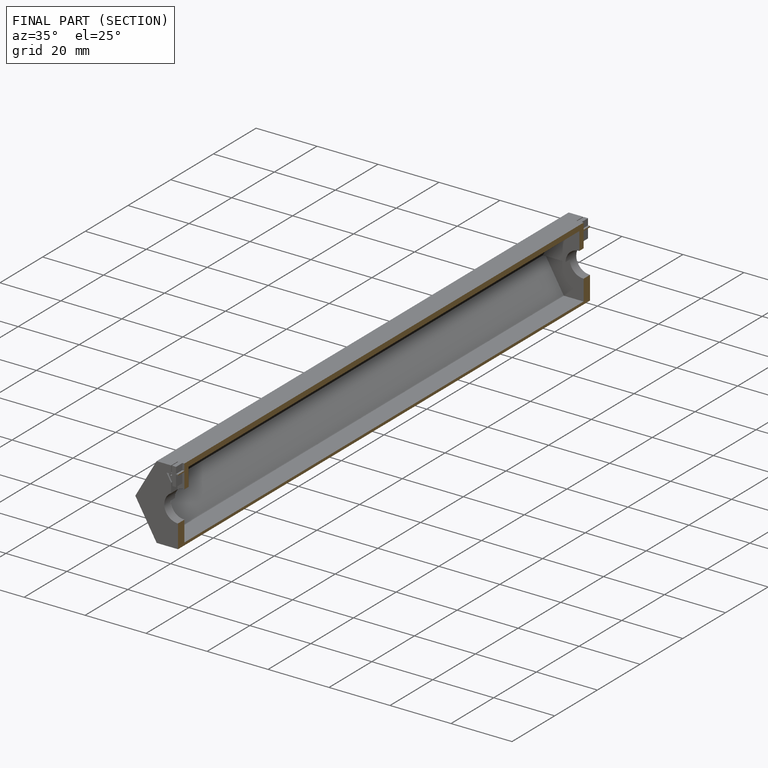
[diagram: finished part — half-section view (interior)]
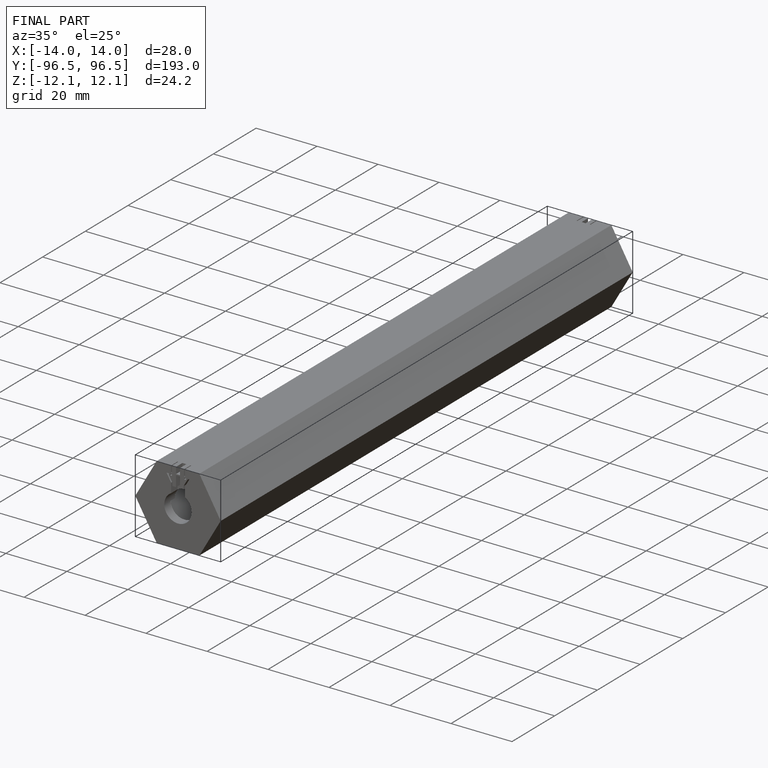
[diagram: finished part — iso view with bounding-box wireframe]
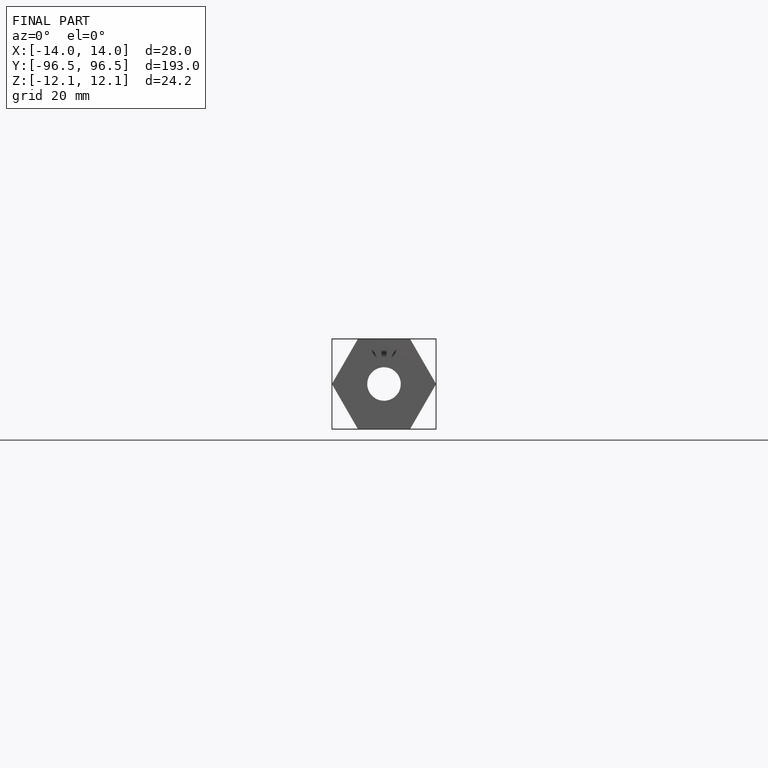
[diagram: finished part — front view with bounding-box wireframe]
